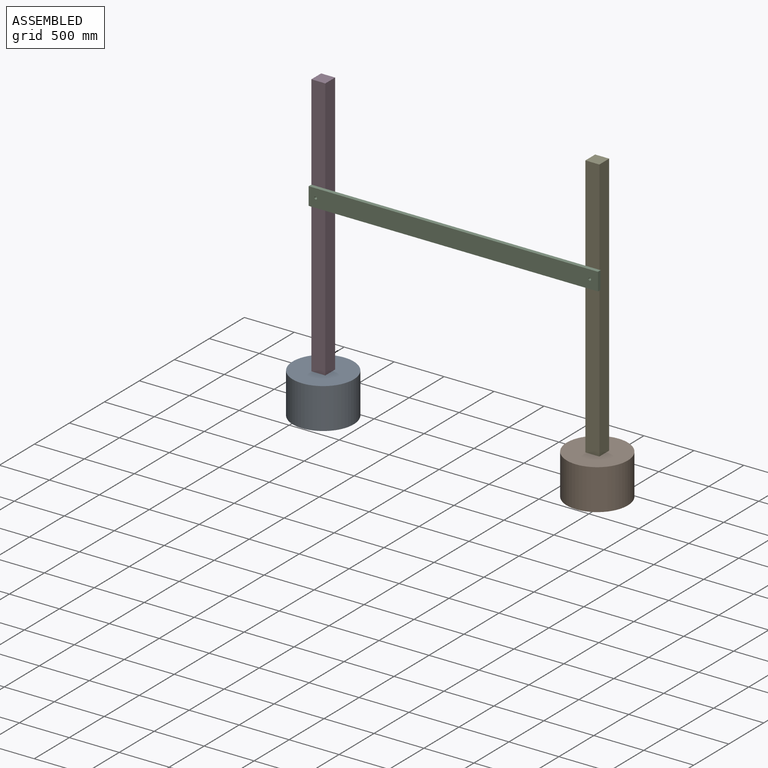
[diagram: assembled view]
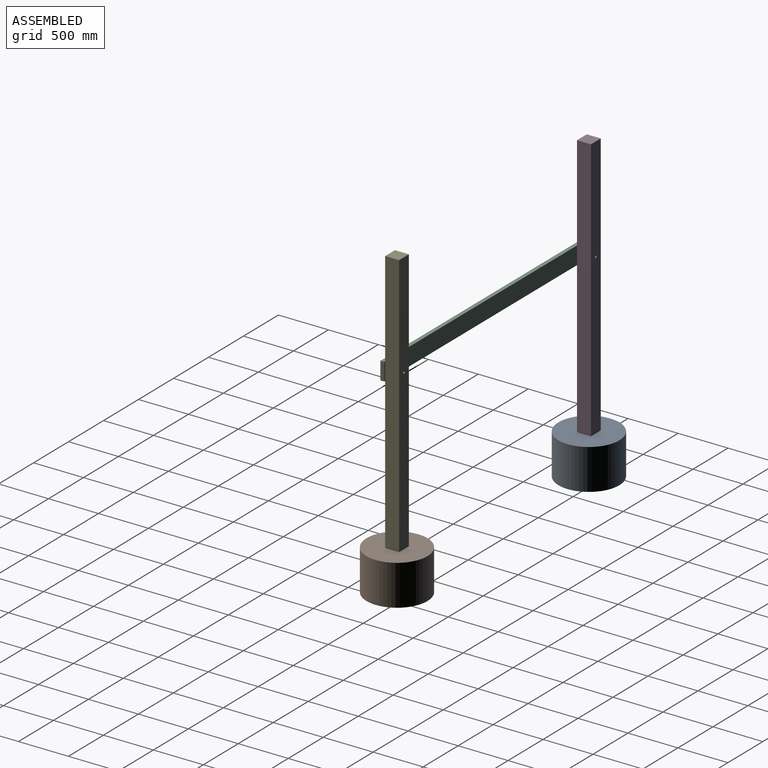
[diagram: assembled view, second angle]
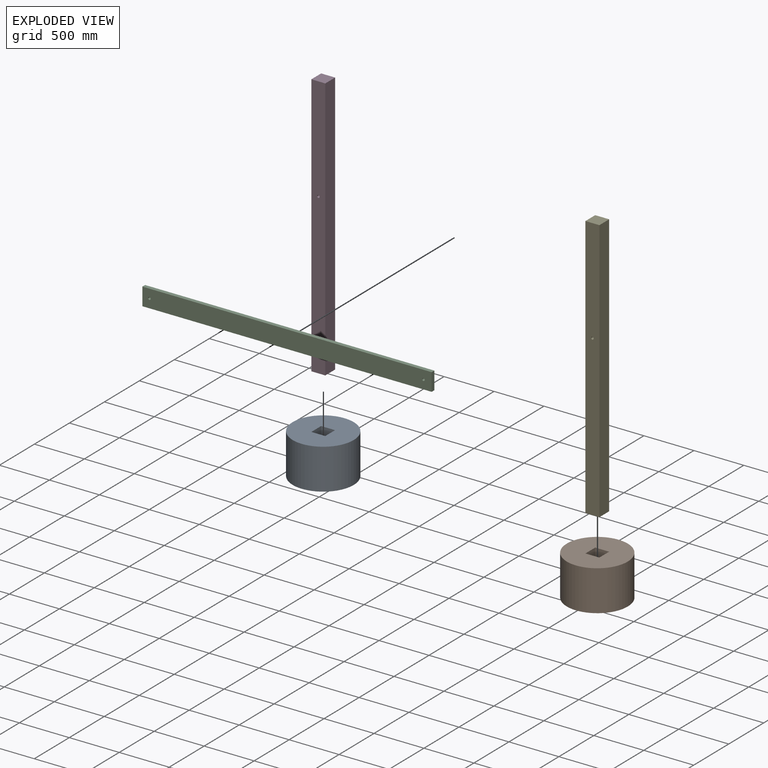
[diagram: exploded view]
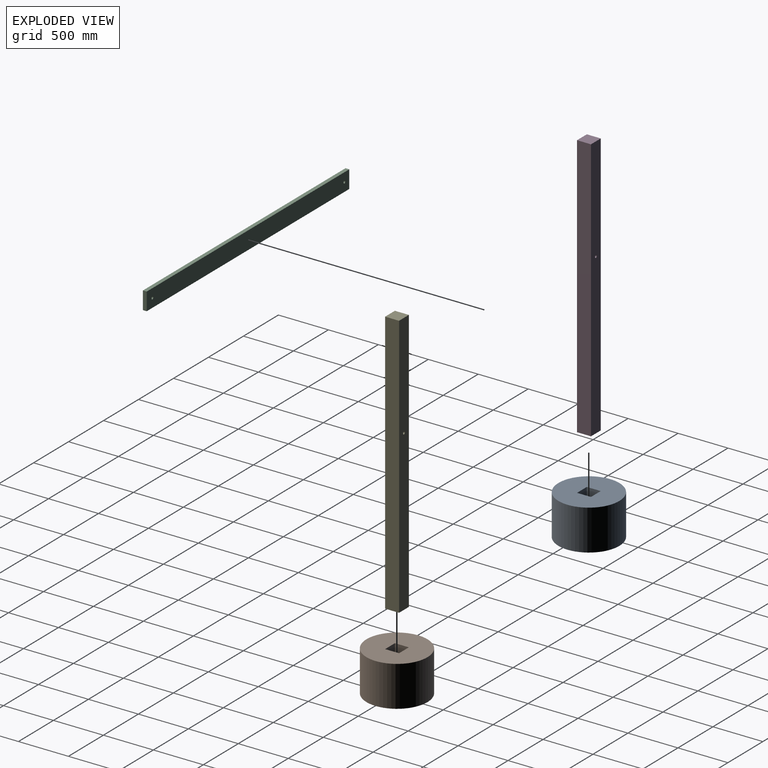
[diagram: exploded view, second angle]
ASSEMBLY  parts=5 mates=4
PART A: 8 faces, bbox 609.6x609.6x406.4 mm
  f0: plane 203.2x139.7mm, normal (0,1,0), area 28387mm2, adj f1,f3,f5,f7
  f1: plane 203.2x139.7mm, normal (1,0,0), area 28387mm2, adj f0,f2,f5,f7
  f2: plane 203.2x139.7mm, normal (0,-1,0), area 28387mm2, adj f1,f3,f5,f7
  f3: plane 203.2x139.7mm, normal (-1,0,0), area 28387mm2, adj f0,f2,f5,f7
  f4: cylinder r=304.8mm len=609.6mm, axis (0,0,-1), area 778302.7mm2, adj f5,f6
  f5: plane 609.6x609.6mm, normal (0,0,1), area 272347.4mm2, adj f0,f1,f2,f3,f4
  f6: plane 609.6x609.6mm, normal (0,0,-1), area 291863.5mm2, adj f4
  f7: plane 139.7x139.7mm, normal (0,0,1), area 19516.1mm2, adj f0,f1,f2,f3
PART B: same geometry as A
PART C: 8 faces, bbox 2895.6x38.1x177.8 mm
  f0: plane 177.8x38.1mm, normal (-1,0,0), area 6774.2mm2, adj f1,f5,f6,f7
  f1: plane 2895.6x38.1mm, normal (0,0,-1), area 110322.4mm2, adj f0,f2,f6,f7
  f2: plane 177.8x38.1mm, normal (1,0,0), area 6774.2mm2, adj f1,f5,f6,f7
  f3: cylinder r=12.7mm len=38.1mm, axis (0,1,0), area 3040.2mm2, adj f6,f7
  f4: cylinder r=12.7mm len=38.1mm, axis (0,1,0), area 3040.2mm2, adj f6,f7
  f5: plane 2895.6x38.1mm, normal (0,0,1), area 110322.4mm2, adj f0,f2,f6,f7
  f6: plane 2895.6x177.8mm, normal (0,-1,0), area 513824.3mm2, adj f0,f1,f2,f3,f4,f5
  f7: plane 2895.6x177.8mm, normal (0,1,0), area 513824.3mm2, adj f0,f1,f2,f3,f4,f5
PART D: 7 faces, bbox 139.7x139.7x2641.6 mm
  f0: plane 2641.6x139.7mm, normal (-1,0,0), area 369031.5mm2, adj f1,f4,f5,f6
  f1: plane 139.7x139.7mm, normal (0,0,-1), area 19516.1mm2, adj f0,f2,f5,f6
  f2: plane 2641.6x139.7mm, normal (1,0,0), area 369031.5mm2, adj f1,f4,f5,f6
  f3: cylinder r=12.7mm len=139.7mm, axis (0,1,0), area 11147.6mm2, adj f5,f6
  f4: plane 139.7x139.7mm, normal (0,0,1), area 19516.1mm2, adj f0,f2,f5,f6
  f5: plane 2641.6x139.7mm, normal (0,-1,0), area 368524.8mm2, adj f0,f1,f2,f3,f4
  f6: plane 2641.6x139.7mm, normal (0,1,0), area 368524.8mm2, adj f0,f1,f2,f3,f4
PART E: same geometry as D
PLACE A t=(-1625.5,67.68,-1202.71)mm
PLACE B t=(1117.7,67.68,-1202.71)mm
PLACE C t=(-305.09,19.05,1285.29)mm fixed
PLACE D t=(-1670.59,158.75,-663)mm
PLACE E t=(1072.61,158.75,-663)mm fixed
MATE cylindrical D.f3 <-> C.f3  axis (0,-1,0) through (-1671.23,19.05,803.89)mm
MATE fastened B.f4 <-> E.f1  axis (0,0,1) through (1071.97,88.9,-796.31)mm
MATE cylindrical E.f3 <-> C.f4  axis (0,-1,0) through (1071.97,19.05,803.89)mm
MATE fastened A.f4 <-> D.f1  axis (0,0,1) through (-1671.23,88.9,-796.31)mm
